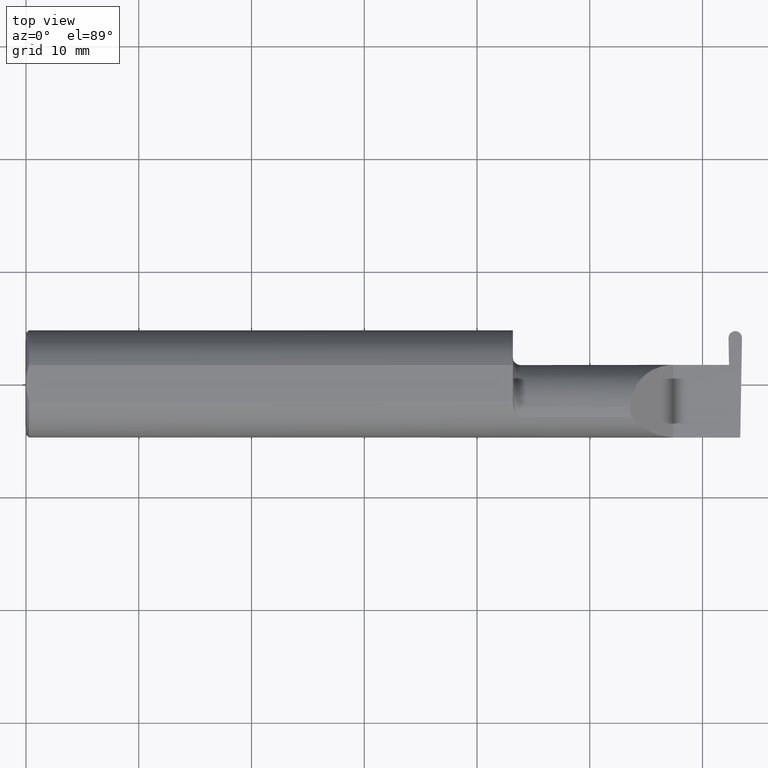
[diagram: clean part render]
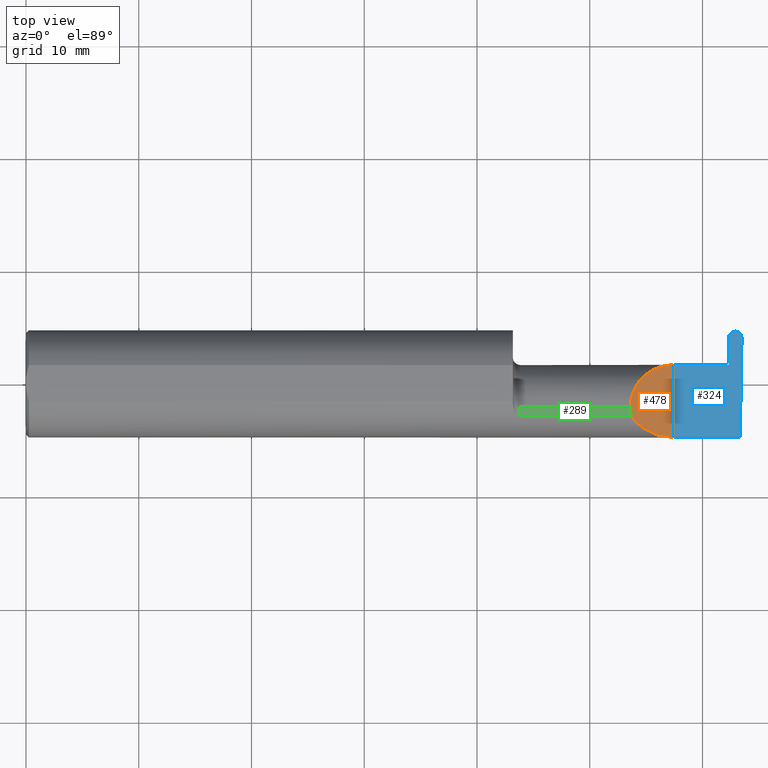
[diagram: same view with three faces highlighted in distinct colors, each labeled with its STEP entity id]
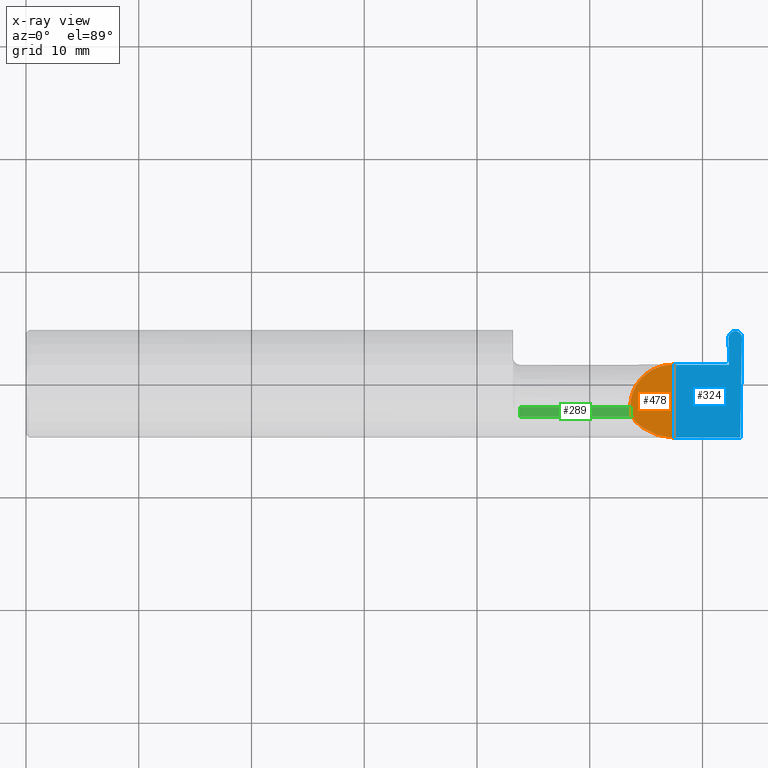
[diagram: x-ray of the same camera — body ghosted, the three highlighted faces saturated]
A machine part, top view with three faces highlighted in distinct colors.
The next image is the same camera in x-ray (body ghosted, the three faces saturated) — at least one of them is partly hidden behind the body in this view.
Their STEP definitions:

[orange] entity #478 — the highlighted planar face has unit normal (-0.7071, 0, -0.7071).
#29 = VERTEX_POINT ( 'NONE', #349 ) ;
#52 = CARTESIAN_POINT ( 'NONE',  ( 2.260000000000000231, -0.2500000000000000555, 2.939152317953647352E-17 ) ) ;
#54 =( BOUNDED_CURVE ( )  B_SPLINE_CURVE ( 3, ( #284, #421, #662, #533 ),
 .UNSPECIFIED., .F., .F. ) 
 B_SPLINE_CURVE_WITH_KNOTS ( ( 4, 4 ),
 ( 0.000000000000000000, 1.570796326794896336 ),
 .UNSPECIFIED. ) 
 CURVE ( )  GEOMETRIC_REPRESENTATION_ITEM ( )  RATIONAL_B_SPLINE_CURVE ( ( 1.000000000000000000, 0.8047378541243650485, 0.8047378541243650485, 1.000000000000000000 ) ) 
 REPRESENTATION_ITEM ( '' )  );
#73 = EDGE_CURVE ( 'NONE', #697, #814, #517, .T. ) ;
#83 = CARTESIAN_POINT ( 'NONE',  ( 2.113883229301068312, -0.1172600179964008171, 0.1461167706989301707 ) ) ;
#115 = VERTEX_POINT ( 'NONE', #329 ) ;
#143 = CARTESIAN_POINT ( 'NONE',  ( 2.113883229301068312, -0.1172600179964008171, 0.1461167706989301707 ) ) ;
#148 = EDGE_CURVE ( 'NONE', #29, #115, #805, .T. ) ;
#150 = CARTESIAN_POINT ( 'NONE',  ( 2.260000000000000231, -0.2500000000000000555, 2.939152317953647352E-17 ) ) ;
#158 = DIRECTION ( 'NONE',  ( -0.7071067811865441310, 0.000000000000000000, -0.7071067811865510144 ) ) ;
#239 = CARTESIAN_POINT ( 'NONE',  ( 2.202189699843948745, -0.1873500000000000443, 0.05781030015605096578 ) ) ;
#284 = CARTESIAN_POINT ( 'NONE',  ( 2.109999999999998987, -0.08334999999999999354, 0.1499999999999999944 ) ) ;
#299 = CARTESIAN_POINT ( 'NONE',  ( 2.260000000000000231, -0.1873499999999999888, 2.939152317953647352E-17 ) ) ;
#329 = CARTESIAN_POINT ( 'NONE',  ( 2.260000000000000231, 0.06664999999999998703, 9.797174393178831081E-17 ) ) ;
#349 = CARTESIAN_POINT ( 'NONE',  ( 2.260000000000000231, -0.1873499999999999888, 2.939152317953647352E-17 ) ) ;
#352 = PLANE ( 'NONE',  #650 ) ;
#377 = ORIENTED_EDGE ( 'NONE', *, *, #529, .F. ) ;
#398 = DIRECTION ( 'NONE',  ( -0.7071067811865509034, 0.000000000000000000, 0.7071067811865440200 ) ) ;
#419 = DIRECTION ( 'NONE',  ( -0.000000000000000000, 1.000000000000000000, -0.000000000000000000 ) ) ;
#421 = CARTESIAN_POINT ( 'NONE',  ( 2.109999999999998543, 0.004517965644035734120, 0.1499999999999999667 ) ) ;
#435 = ORIENTED_EDGE ( 'NONE', *, *, #73, .F. ) ;
#461 = CARTESIAN_POINT ( 'NONE',  ( 2.113883229301068312, -0.1172600179964008171, 0.1461167706989301707 ) ) ;
#478 = ADVANCED_FACE ( 'NONE', ( #712 ), #352, .F. ) ;
#487 = CARTESIAN_POINT ( 'NONE',  ( 2.150065971957465294, -0.1623470442677542591, 0.1099340280425336325 ) ) ;
#517 =( BOUNDED_CURVE ( )  B_SPLINE_CURVE ( 3, ( #461, #776, #714, #536 ),
 .UNSPECIFIED., .F., .F. ) 
 B_SPLINE_CURVE_WITH_KNOTS ( ( 4, 4 ),
 ( 6.055147272130141367, 6.283185307179586232 ),
 .UNSPECIFIED. ) 
 CURVE ( )  GEOMETRIC_REPRESENTATION_ITEM ( )  RATIONAL_B_SPLINE_CURVE ( ( 1.000000000000000000, 0.9956712472009929815, 0.9956712472009929815, 1.000000000000000000 ) ) 
 REPRESENTATION_ITEM ( '' )  );
#529 = EDGE_CURVE ( 'NONE', #814, #115, #54, .T. ) ;
#533 = CARTESIAN_POINT ( 'NONE',  ( 2.260000000000000231, 0.06664999999999998703, 9.797174393178831081E-17 ) ) ;
#536 = CARTESIAN_POINT ( 'NONE',  ( 2.109999999999998987, -0.08334999999999999354, 0.1499999999999999944 ) ) ;
#556 = ORIENTED_EDGE ( 'NONE', *, *, #148, .T. ) ;
#567 = EDGE_CURVE ( 'NONE', #29, #697, #667, .T. ) ;
#607 = EDGE_LOOP ( 'NONE', ( #435, #695, #556, #377 ) ) ;
#650 = AXIS2_PLACEMENT_3D ( 'NONE', #150, #158, #398 ) ;
#662 = CARTESIAN_POINT ( 'NONE',  ( 2.172132034355963359, 0.06664999999999998703, 0.08786796564403573373 ) ) ;
#667 =( BOUNDED_CURVE ( )  B_SPLINE_CURVE ( 3, ( #299, #239, #487, #83 ),
 .UNSPECIFIED., .F., .F. ) 
 B_SPLINE_CURVE_WITH_KNOTS ( ( 4, 4 ),
 ( 4.712388980384688786, 5.606916381293135743 ),
 .UNSPECIFIED. ) 
 CURVE ( )  GEOMETRIC_REPRESENTATION_ITEM ( )  RATIONAL_B_SPLINE_CURVE ( ( 1.000000000000000000, 0.9344226172588803170, 0.9344226172588803170, 1.000000000000000000 ) ) 
 REPRESENTATION_ITEM ( '' )  );
#695 = ORIENTED_EDGE ( 'NONE', *, *, #567, .F. ) ;
#697 = VERTEX_POINT ( 'NONE', #143 ) ;
#698 = CARTESIAN_POINT ( 'NONE',  ( 2.109999999999998987, -0.08334999999999999354, 0.1499999999999999944 ) ) ;
#712 = FACE_OUTER_BOUND ( 'NONE', #607, .T. ) ;
#714 = CARTESIAN_POINT ( 'NONE',  ( 2.109999999999998543, -0.09477667630339427218, 0.1499999999999999667 ) ) ;
#776 = CARTESIAN_POINT ( 'NONE',  ( 2.111300037307153765, -0.1061291577212410409, 0.1486999626928446061 ) ) ;
#785 = VECTOR ( 'NONE', #419, 39.37007874015748143 ) ;
#805 = LINE ( 'NONE', #52, #785 ) ;
#814 = VERTEX_POINT ( 'NONE', #698 ) ;

[blue] entity #324 — the highlighted planar face has unit normal (-0, 0, -1).
#29 = VERTEX_POINT ( 'NONE', #349 ) ;
#30 = CARTESIAN_POINT ( 'NONE',  ( 2.490599447477928052, 0.1846499999999998420, -1.730980851401792408E-18 ) ) ;
#36 = CARTESIAN_POINT ( 'NONE',  ( 2.462360552522071089, 0.1846499999999998698, 1.730980851401795297E-18 ) ) ;
#39 = EDGE_CURVE ( 'NONE', #442, #152, #319, .T. ) ;
#52 = CARTESIAN_POINT ( 'NONE',  ( 2.260000000000000231, -0.2500000000000000555, 2.939152317953647352E-17 ) ) ;
#63 = DIRECTION ( 'NONE',  ( -1.000000000000000000, -0.000000000000000000, -0.000000000000000000 ) ) ;
#81 = CARTESIAN_POINT ( 'NONE',  ( 2.499980319257137484, 0.1597972350660649687, 0.000000000000000000 ) ) ;
#86 = ORIENTED_EDGE ( 'NONE', *, *, #100, .F. ) ;
#87 = CARTESIAN_POINT ( 'NONE',  ( 2.476759731742398163, 0.1846500000000000363, 0.000000000000000000 ) ) ;
#88 = LINE ( 'NONE', #351, #618 ) ;
#100 = EDGE_CURVE ( 'NONE', #527, #182, #710, .T. ) ;
#102 = DIRECTION ( 'NONE',  ( 1.000000000000000000, -0.000000000000000000, -0.000000000000000000 ) ) ;
#113 = ORIENTED_EDGE ( 'NONE', *, *, #39, .T. ) ;
#115 = VERTEX_POINT ( 'NONE', #329 ) ;
#148 = EDGE_CURVE ( 'NONE', #29, #115, #805, .T. ) ;
#149 = CARTESIAN_POINT ( 'NONE',  ( 2.476200268257601422, 0.1846500000000000363, 0.000000000000000000 ) ) ;
#152 = VERTEX_POINT ( 'NONE', #484 ) ;
#153 = CARTESIAN_POINT ( 'NONE',  ( 2.454605571778825102, 0.06664999999999998703, 0.000000000000000000 ) ) ;
#160 = DIRECTION ( 'NONE',  ( 1.000000000000000000, 9.674096982053045718E-15, -0.000000000000000000 ) ) ;
#182 = VERTEX_POINT ( 'NONE', #360 ) ;
#192 = ORIENTED_EDGE ( 'NONE', *, *, #504, .F. ) ;
#199 = CARTESIAN_POINT ( 'NONE',  ( 1.699999999999999956, 0.06664999999999998703, 9.797174393178831081E-17 ) ) ;
#200 = EDGE_CURVE ( 'NONE', #442, #492, #737, .T. ) ;
#203 = PLANE ( 'NONE',  #660 ) ;
#205 = LINE ( 'NONE', #199, #508 ) ;
#207 = DIRECTION ( 'NONE',  ( -1.224646799147353947E-16, 0.000000000000000000, -1.000000000000000000 ) ) ;
#208 = VECTOR ( 'NONE', #412, 39.37007874015748854 ) ;
#222 = CARTESIAN_POINT ( 'NONE',  ( 2.447545874117295739, 0.06664999999999991764, 0.000000000000000000 ) ) ;
#319 =( BOUNDED_CURVE ( )  B_SPLINE_CURVE ( 3, ( #81, #652, #30, #87 ),
 .UNSPECIFIED., .F., .F. ) 
 B_SPLINE_CURVE_WITH_KNOTS ( ( 4, 4 ),
 ( 1.683182027770901534, 3.259781963246008996 ),
 .UNSPECIFIED. ) 
 CURVE ( )  GEOMETRIC_REPRESENTATION_ITEM ( )  RATIONAL_B_SPLINE_CURVE ( ( 1.000000000000000000, 0.8033679476376978101, 0.8033679476376978101, 1.000000000000000000 ) ) 
 REPRESENTATION_ITEM ( '' )  );
#324 = ADVANCED_FACE ( 'NONE', ( #767 ), #203, .F. ) ;
#329 = CARTESIAN_POINT ( 'NONE',  ( 2.260000000000000231, 0.06664999999999998703, 9.797174393178831081E-17 ) ) ;
#332 = ORIENTED_EDGE ( 'NONE', *, *, #148, .F. ) ;
#336 = EDGE_CURVE ( 'NONE', #492, #29, #515, .T. ) ;
#343 = CARTESIAN_POINT ( 'NONE',  ( 2.452725869110807366, 0.1743380937279881138, 2.910889271442055903E-18 ) ) ;
#349 = CARTESIAN_POINT ( 'NONE',  ( 2.260000000000000231, -0.1873499999999999888, 2.939152317953647352E-17 ) ) ;
#351 = CARTESIAN_POINT ( 'NONE',  ( -0.001039370078739994957, 0.1846500000000000363, 0.000000000000000000 ) ) ;
#360 = CARTESIAN_POINT ( 'NONE',  ( 2.454605571778825102, 0.06664999999999998703, 0.000000000000000000 ) ) ;
#380 = ORIENTED_EDGE ( 'NONE', *, *, #617, .F. ) ;
#392 = CARTESIAN_POINT ( 'NONE',  ( 2.476200268257601422, 0.1846500000000000363, 0.000000000000000000 ) ) ;
#406 = DIRECTION ( 'NONE',  ( -0.01745240643727800564, 0.9998476951563912696, -0.000000000000000000 ) ) ;
#412 = DIRECTION ( 'NONE',  ( -0.01745240643727575397, -0.9998476951563912696, 0.000000000000000000 ) ) ;
#419 = DIRECTION ( 'NONE',  ( -0.000000000000000000, 1.000000000000000000, -0.000000000000000000 ) ) ;
#442 = VERTEX_POINT ( 'NONE', #547 ) ;
#447 = DIRECTION ( 'NONE',  ( 1.000000000000000000, 0.000000000000000000, 0.000000000000000000 ) ) ;
#451 = DIRECTION ( 'NONE',  ( -1.000000000000000000, 0.000000000000000000, 1.224646799147353947E-16 ) ) ;
#484 = CARTESIAN_POINT ( 'NONE',  ( 2.476759731742398163, 0.1846500000000000363, 0.000000000000000000 ) ) ;
#486 = VECTOR ( 'NONE', #406, 39.37007874015748143 ) ;
#492 = VERTEX_POINT ( 'NONE', #775 ) ;
#504 = EDGE_CURVE ( 'NONE', #182, #690, #787, .T. ) ;
#508 = VECTOR ( 'NONE', #447, 39.37007874015748143 ) ;
#509 = ORIENTED_EDGE ( 'NONE', *, *, #629, .T. ) ;
#515 = LINE ( 'NONE', #704, #686 ) ;
#527 = VERTEX_POINT ( 'NONE', #222 ) ;
#540 = CARTESIAN_POINT ( 'NONE',  ( 2.452979680742863433, 0.1597972350660649687, 0.000000000000000000 ) ) ;
#547 = CARTESIAN_POINT ( 'NONE',  ( 2.499980319257137484, 0.1597972350660649687, 0.000000000000000000 ) ) ;
#551 = CARTESIAN_POINT ( 'NONE',  ( 2.499996417790078862, 0.1607195194005952565, 0.000000000000000000 ) ) ;
#617 = EDGE_CURVE ( 'NONE', #685, #152, #88, .T. ) ;
#618 = VECTOR ( 'NONE', #102, 39.37007874015748143 ) ;
#629 = EDGE_CURVE ( 'NONE', #685, #690, #746, .T. ) ;
#639 = ORIENTED_EDGE ( 'NONE', *, *, #200, .F. ) ;
#652 = CARTESIAN_POINT ( 'NONE',  ( 2.500234130889192219, 0.1743380937279881138, -2.910889271442051666E-18 ) ) ;
#660 = AXIS2_PLACEMENT_3D ( 'NONE', #758, #207, #451 ) ;
#685 = VERTEX_POINT ( 'NONE', #392 ) ;
#686 = VECTOR ( 'NONE', #63, 39.37007874015748143 ) ;
#690 = VERTEX_POINT ( 'NONE', #707 ) ;
#691 = EDGE_LOOP ( 'NONE', ( #380, #509, #192, #86, #749, #332, #739, #639, #113 ) ) ;
#704 = CARTESIAN_POINT ( 'NONE',  ( 3.749399456654646757E-32, -0.1873499999999999610, 3.061616997868383634E-16 ) ) ;
#707 = CARTESIAN_POINT ( 'NONE',  ( 2.452979680742863433, 0.1597972350660649687, 0.000000000000000000 ) ) ;
#710 = LINE ( 'NONE', #153, #769 ) ;
#717 = CARTESIAN_POINT ( 'NONE',  ( 2.452963582209922055, 0.1607195194005952010, 0.000000000000000000 ) ) ;
#737 = LINE ( 'NONE', #551, #208 ) ;
#739 = ORIENTED_EDGE ( 'NONE', *, *, #336, .F. ) ;
#746 =( BOUNDED_CURVE ( )  B_SPLINE_CURVE ( 3, ( #149, #36, #343, #540 ),
 .UNSPECIFIED., .F., .F. ) 
 B_SPLINE_CURVE_WITH_KNOTS ( ( 4, 4 ),
 ( 6.164995997523367244, 7.741595932998476925 ),
 .UNSPECIFIED. ) 
 CURVE ( )  GEOMETRIC_REPRESENTATION_ITEM ( )  RATIONAL_B_SPLINE_CURVE ( ( 1.000000000000000000, 0.8033679476376971440, 0.8033679476376971440, 1.000000000000000000 ) ) 
 REPRESENTATION_ITEM ( '' )  );
#749 = ORIENTED_EDGE ( 'NONE', *, *, #798, .F. ) ;
#758 = CARTESIAN_POINT ( 'NONE',  ( 2.500000000000000000, -0.2500000000000000555, 0.000000000000000000 ) ) ;
#767 = FACE_OUTER_BOUND ( 'NONE', #691, .T. ) ;
#769 = VECTOR ( 'NONE', #160, 39.37007874015748143 ) ;
#775 = CARTESIAN_POINT ( 'NONE',  ( 2.493920841729410753, -0.1873499999999999888, 0.000000000000000000 ) ) ;
#785 = VECTOR ( 'NONE', #419, 39.37007874015748143 ) ;
#787 = LINE ( 'NONE', #717, #486 ) ;
#798 = EDGE_CURVE ( 'NONE', #115, #527, #205, .T. ) ;
#805 = LINE ( 'NONE', #52, #785 ) ;

[green] entity #289 — the highlighted cylindrical surface (partial cylindrical patch) has radius 3.81 mm, axis along (-1, -0, -0).
#24 = DIRECTION ( 'NONE',  ( -1.000000000000000000, -0.000000000000000000, -0.000000000000000000 ) ) ;
#38 = CIRCLE ( 'NONE', #135, 0.1499999999999999944 ) ;
#62 = ORIENTED_EDGE ( 'NONE', *, *, #742, .T. ) ;
#73 = EDGE_CURVE ( 'NONE', #697, #814, #517, .T. ) ;
#98 = LINE ( 'NONE', #475, #620 ) ;
#99 = DIRECTION ( 'NONE',  ( 0.000000000000000000, 0.000000000000000000, 1.000000000000000000 ) ) ;
#135 = AXIS2_PLACEMENT_3D ( 'NONE', #411, #665, #99 ) ;
#143 = CARTESIAN_POINT ( 'NONE',  ( 2.113883229301068312, -0.1172600179964008171, 0.1461167706989301707 ) ) ;
#151 = ORIENTED_EDGE ( 'NONE', *, *, #438, .F. ) ;
#187 = ORIENTED_EDGE ( 'NONE', *, *, #709, .T. ) ;
#238 = VERTEX_POINT ( 'NONE', #489 ) ;
#261 = VERTEX_POINT ( 'NONE', #297 ) ;
#268 = CYLINDRICAL_SURFACE ( 'NONE', #305, 0.1499999999999999944 ) ;
#273 = DIRECTION ( 'NONE',  ( -1.000000000000000000, -0.000000000000000000, -0.000000000000000000 ) ) ;
#289 = ADVANCED_FACE ( 'NONE', ( #338 ), #268, .T. ) ;
#297 = CARTESIAN_POINT ( 'NONE',  ( 1.724999999999999867, -0.08334999999999999354, 0.1499999999999999944 ) ) ;
#305 = AXIS2_PLACEMENT_3D ( 'NONE', #333, #273, #370 ) ;
#326 = DIRECTION ( 'NONE',  ( 1.000000000000000000, 0.000000000000000000, 0.000000000000000000 ) ) ;
#333 = CARTESIAN_POINT ( 'NONE',  ( 1.699999999999999956, -0.08334999999999999354, 0.000000000000000000 ) ) ;
#338 = FACE_OUTER_BOUND ( 'NONE', #544, .T. ) ;
#364 = ORIENTED_EDGE ( 'NONE', *, *, #73, .T. ) ;
#370 = DIRECTION ( 'NONE',  ( 0.000000000000000000, 0.000000000000000000, 1.000000000000000000 ) ) ;
#387 = LINE ( 'NONE', #694, #751 ) ;
#411 = CARTESIAN_POINT ( 'NONE',  ( 1.724999999999999867, -0.08334999999999999354, 0.000000000000000000 ) ) ;
#438 = EDGE_CURVE ( 'NONE', #238, #261, #38, .T. ) ;
#461 = CARTESIAN_POINT ( 'NONE',  ( 2.113883229301068312, -0.1172600179964008171, 0.1461167706989301707 ) ) ;
#475 = CARTESIAN_POINT ( 'NONE',  ( 1.699999999999999956, -0.08334999999999999354, 0.1499999999999999944 ) ) ;
#489 = CARTESIAN_POINT ( 'NONE',  ( 1.724999999999999867, -0.1172600179964006645, 0.1461167706989303372 ) ) ;
#517 =( BOUNDED_CURVE ( )  B_SPLINE_CURVE ( 3, ( #461, #776, #714, #536 ),
 .UNSPECIFIED., .F., .F. ) 
 B_SPLINE_CURVE_WITH_KNOTS ( ( 4, 4 ),
 ( 6.055147272130141367, 6.283185307179586232 ),
 .UNSPECIFIED. ) 
 CURVE ( )  GEOMETRIC_REPRESENTATION_ITEM ( )  RATIONAL_B_SPLINE_CURVE ( ( 1.000000000000000000, 0.9956712472009929815, 0.9956712472009929815, 1.000000000000000000 ) ) 
 REPRESENTATION_ITEM ( '' )  );
#536 = CARTESIAN_POINT ( 'NONE',  ( 2.109999999999998987, -0.08334999999999999354, 0.1499999999999999944 ) ) ;
#544 = EDGE_LOOP ( 'NONE', ( #364, #187, #151, #62 ) ) ;
#620 = VECTOR ( 'NONE', #24, 39.37007874015748143 ) ;
#665 = DIRECTION ( 'NONE',  ( -1.000000000000000000, -0.000000000000000000, -0.000000000000000000 ) ) ;
#694 = CARTESIAN_POINT ( 'NONE',  ( 2.088979999999999837, -0.1172600179964006784, 0.1461167706989303650 ) ) ;
#697 = VERTEX_POINT ( 'NONE', #143 ) ;
#698 = CARTESIAN_POINT ( 'NONE',  ( 2.109999999999998987, -0.08334999999999999354, 0.1499999999999999944 ) ) ;
#709 = EDGE_CURVE ( 'NONE', #814, #261, #98, .T. ) ;
#714 = CARTESIAN_POINT ( 'NONE',  ( 2.109999999999998543, -0.09477667630339427218, 0.1499999999999999667 ) ) ;
#742 = EDGE_CURVE ( 'NONE', #238, #697, #387, .T. ) ;
#751 = VECTOR ( 'NONE', #326, 39.37007874015748143 ) ;
#776 = CARTESIAN_POINT ( 'NONE',  ( 2.111300037307153765, -0.1061291577212410409, 0.1486999626928446061 ) ) ;
#814 = VERTEX_POINT ( 'NONE', #698 ) ;